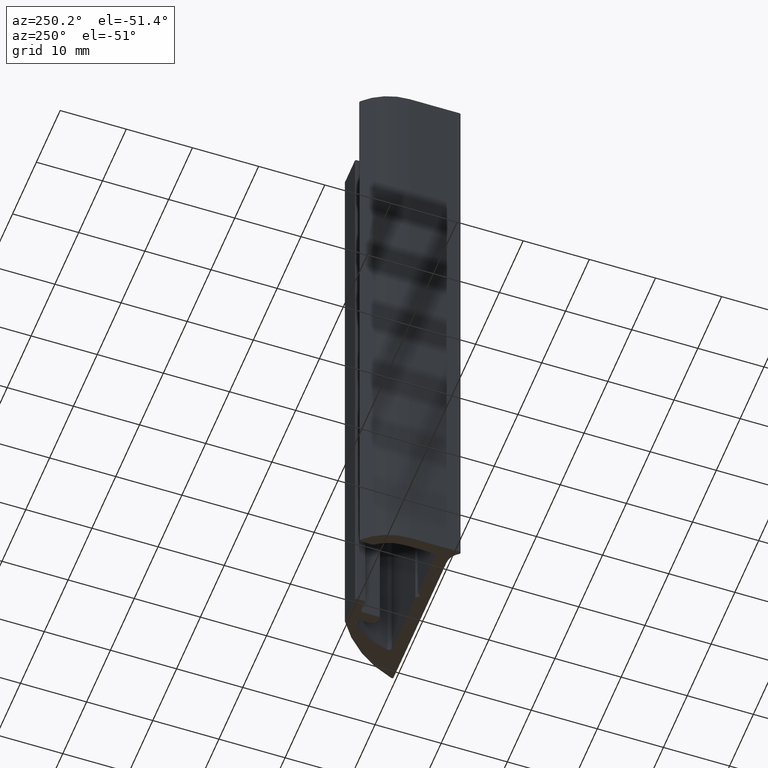
[diagram: clean part render]
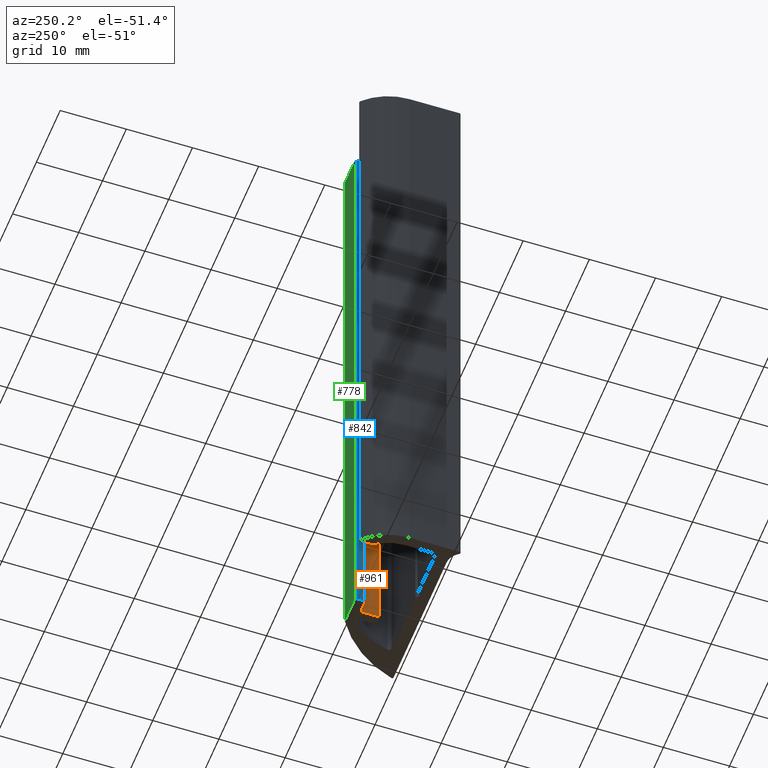
[diagram: same view with three faces highlighted in distinct colors, each labeled with its STEP entity id]
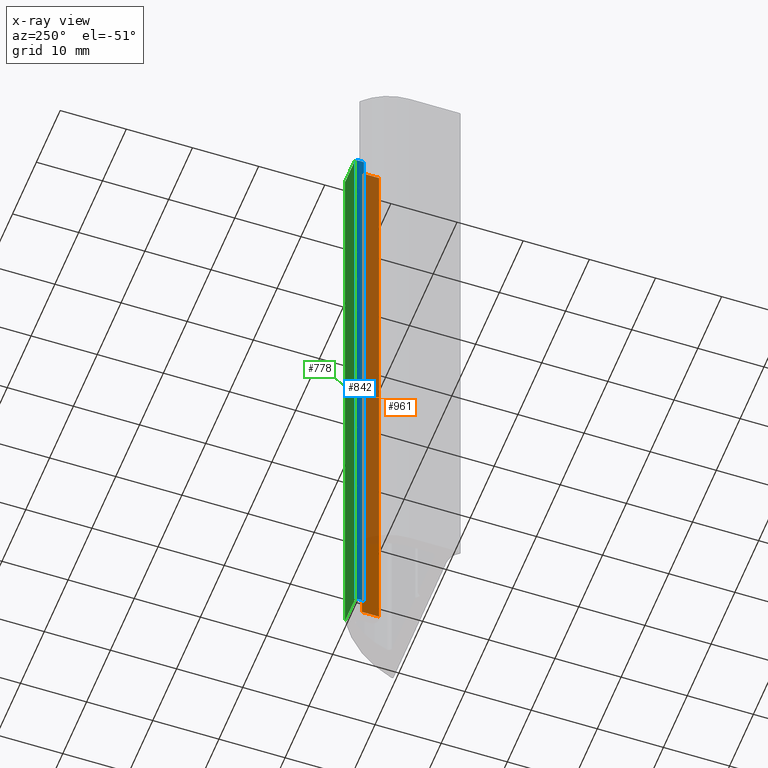
[diagram: x-ray of the same camera — body ghosted, the three highlighted faces saturated]
A machine part, auxiliary view with three faces highlighted in distinct colors.
The next image is the same camera in x-ray (body ghosted, the three faces saturated) — at least one of them is partly hidden behind the body in this view.
Their STEP definitions:

[orange] entity #961 — the highlighted planar face has unit normal (-1, 0, 0).
#7=CARTESIAN_POINT('',(12.500000000004320,5.699999999975489,0.0));
#8=VERTEX_POINT('',#7);
#26=CARTESIAN_POINT('',(12.500000000004320,5.699999999975489,100.0));
#27=VERTEX_POINT('',#26);
#35=CARTESIAN_POINT('',(12.500000000004320,5.699999999975489,0.0));
#36=DIRECTION('',(0.0,0.0,1.0));
#37=VECTOR('',#36,100.0);
#38=LINE('',#35,#37);
#39=EDGE_CURVE('',#8,#27,#38,.T.);
#912=CARTESIAN_POINT('',(12.500000000004320,8.299999999975626,0.0));
#913=VERTEX_POINT('',#912);
#921=CARTESIAN_POINT('',(12.500000000004320,8.299999999975626,100.0));
#922=VERTEX_POINT('',#921);
#923=CARTESIAN_POINT('',(12.500000000004320,8.299999999975626,0.0));
#924=DIRECTION('',(0.0,0.0,1.0));
#925=VECTOR('',#924,100.0);
#926=LINE('',#923,#925);
#927=EDGE_CURVE('',#913,#922,#926,.T.);
#940=CARTESIAN_POINT('',(12.500000000004320,8.299999999975626,0.0));
#941=DIRECTION('',(-1.0,0.0,0.0));
#942=DIRECTION('',(0.0,-1.0,0.0));
#943=AXIS2_PLACEMENT_3D('',#940,#941,#942);
#944=PLANE('',#943);
#945=CARTESIAN_POINT('',(12.500000000004320,8.299999999975626,0.0));
#946=DIRECTION('',(0.0,-1.0,0.0));
#947=VECTOR('',#946,2.600000000000136);
#948=LINE('',#945,#947);
#949=EDGE_CURVE('',#913,#8,#948,.T.);
#950=ORIENTED_EDGE('',*,*,#949,.T.);
#951=ORIENTED_EDGE('',*,*,#39,.T.);
#952=CARTESIAN_POINT('',(12.500000000004320,8.299999999975626,100.0));
#953=DIRECTION('',(0.0,-1.0,0.0));
#954=VECTOR('',#953,2.600000000000136);
#955=LINE('',#952,#954);
#956=EDGE_CURVE('',#922,#27,#955,.T.);
#957=ORIENTED_EDGE('',*,*,#956,.F.);
#958=ORIENTED_EDGE('',*,*,#927,.F.);
#959=EDGE_LOOP('',(#950,#951,#957,#958));
#960=FACE_OUTER_BOUND('',#959,.T.);
#961=ADVANCED_FACE('',(#960),#944,.T.);

[blue] entity #842 — the highlighted planar face has unit normal (-1, 0, 0).
#784=CARTESIAN_POINT('',(10.500000000004320,9.799999999976308,0.0));
#785=VERTEX_POINT('',#784);
#793=CARTESIAN_POINT('',(10.500000000004320,9.799999999976308,100.0));
#794=VERTEX_POINT('',#793);
#795=CARTESIAN_POINT('',(10.500000000004320,9.799999999976308,0.0));
#796=DIRECTION('',(0.0,0.0,1.0));
#797=VECTOR('',#796,100.0);
#798=LINE('',#795,#797);
#799=EDGE_CURVE('',#785,#794,#798,.T.);
#812=CARTESIAN_POINT('',(10.500000000004320,9.799999999976308,0.0));
#813=DIRECTION('',(-1.0,0.0,0.0));
#814=DIRECTION('',(0.0,-1.0,0.0));
#815=AXIS2_PLACEMENT_3D('',#812,#813,#814);
#816=PLANE('',#815);
#817=CARTESIAN_POINT('',(10.500000000004320,8.699999999976058,0.0));
#818=VERTEX_POINT('',#817);
#819=CARTESIAN_POINT('',(10.500000000004320,9.799999999976308,0.0));
#820=DIRECTION('',(0.0,-1.0,0.0));
#821=VECTOR('',#820,1.100000000000250);
#822=LINE('',#819,#821);
#823=EDGE_CURVE('',#785,#818,#822,.T.);
#824=ORIENTED_EDGE('',*,*,#823,.T.);
#825=CARTESIAN_POINT('',(10.500000000004320,8.699999999976058,100.0));
#826=VERTEX_POINT('',#825);
#827=CARTESIAN_POINT('',(10.500000000004320,8.699999999976058,0.0));
#828=DIRECTION('',(0.0,0.0,1.0));
#829=VECTOR('',#828,100.0);
#830=LINE('',#827,#829);
#831=EDGE_CURVE('',#818,#826,#830,.T.);
#832=ORIENTED_EDGE('',*,*,#831,.T.);
#833=CARTESIAN_POINT('',(10.500000000004320,9.799999999976308,100.0));
#834=DIRECTION('',(0.0,-1.0,0.0));
#835=VECTOR('',#834,1.100000000000250);
#836=LINE('',#833,#835);
#837=EDGE_CURVE('',#794,#826,#836,.T.);
#838=ORIENTED_EDGE('',*,*,#837,.F.);
#839=ORIENTED_EDGE('',*,*,#799,.F.);
#840=EDGE_LOOP('',(#824,#832,#838,#839));
#841=FACE_OUTER_BOUND('',#840,.T.);
#842=ADVANCED_FACE('',(#841),#816,.T.);

[green] entity #778 — the highlighted planar face has unit normal (0, 1, 0).
#720=CARTESIAN_POINT('',(14.896275858025547,9.999999999974421,0.0));
#721=VERTEX_POINT('',#720);
#729=CARTESIAN_POINT('',(14.896275858025547,9.999999999974421,100.0));
#730=VERTEX_POINT('',#729);
#731=CARTESIAN_POINT('',(14.896275858025547,9.999999999974421,0.0));
#732=DIRECTION('',(0.0,0.0,1.0));
#733=VECTOR('',#732,100.0);
#734=LINE('',#731,#733);
#735=EDGE_CURVE('',#721,#730,#734,.T.);
#748=CARTESIAN_POINT('',(14.896275858025547,9.999999999974421,0.0));
#749=DIRECTION('',(0.0,1.0,0.0));
#750=DIRECTION('',(-1.0,0.0,0.0));
#751=AXIS2_PLACEMENT_3D('',#748,#749,#750);
#752=PLANE('',#751);
#753=CARTESIAN_POINT('',(10.700000000004366,9.999999999974421,0.0));
#754=VERTEX_POINT('',#753);
#755=CARTESIAN_POINT('',(14.896275858025547,9.999999999974421,0.0));
#756=DIRECTION('',(-1.0,0.0,0.0));
#757=VECTOR('',#756,4.196275858021181);
#758=LINE('',#755,#757);
#759=EDGE_CURVE('',#721,#754,#758,.T.);
#760=ORIENTED_EDGE('',*,*,#759,.T.);
#761=CARTESIAN_POINT('',(10.700000000004366,9.999999999974421,100.0));
#762=VERTEX_POINT('',#761);
#763=CARTESIAN_POINT('',(10.700000000004366,9.999999999974421,0.0));
#764=DIRECTION('',(0.0,0.0,1.0));
#765=VECTOR('',#764,100.0);
#766=LINE('',#763,#765);
#767=EDGE_CURVE('',#754,#762,#766,.T.);
#768=ORIENTED_EDGE('',*,*,#767,.T.);
#769=CARTESIAN_POINT('',(14.896275858025547,9.999999999974421,100.0));
#770=DIRECTION('',(-1.0,0.0,0.0));
#771=VECTOR('',#770,4.196275858021181);
#772=LINE('',#769,#771);
#773=EDGE_CURVE('',#730,#762,#772,.T.);
#774=ORIENTED_EDGE('',*,*,#773,.F.);
#775=ORIENTED_EDGE('',*,*,#735,.F.);
#776=EDGE_LOOP('',(#760,#768,#774,#775));
#777=FACE_OUTER_BOUND('',#776,.T.);
#778=ADVANCED_FACE('',(#777),#752,.T.);